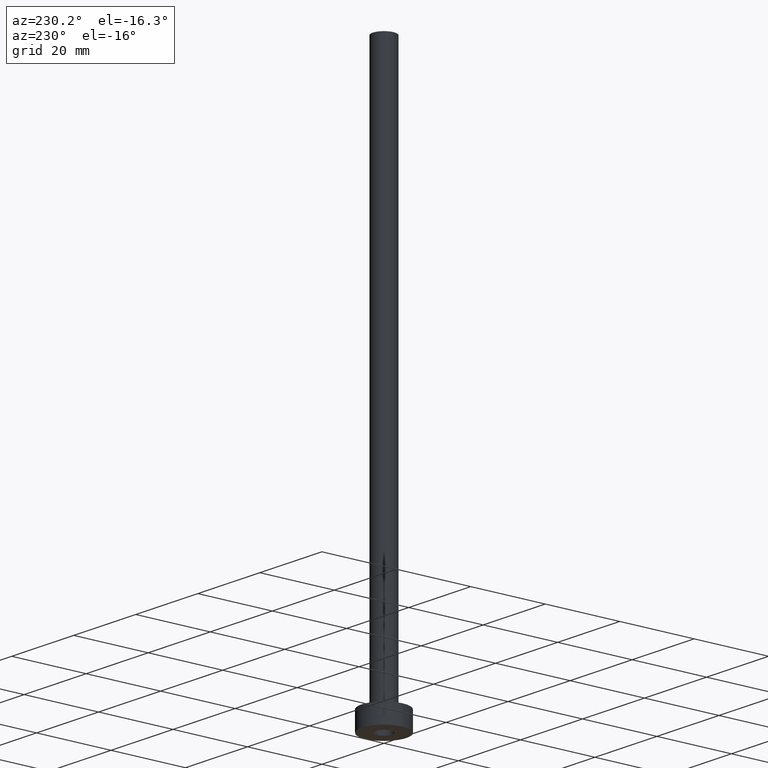
[diagram: clean part render]
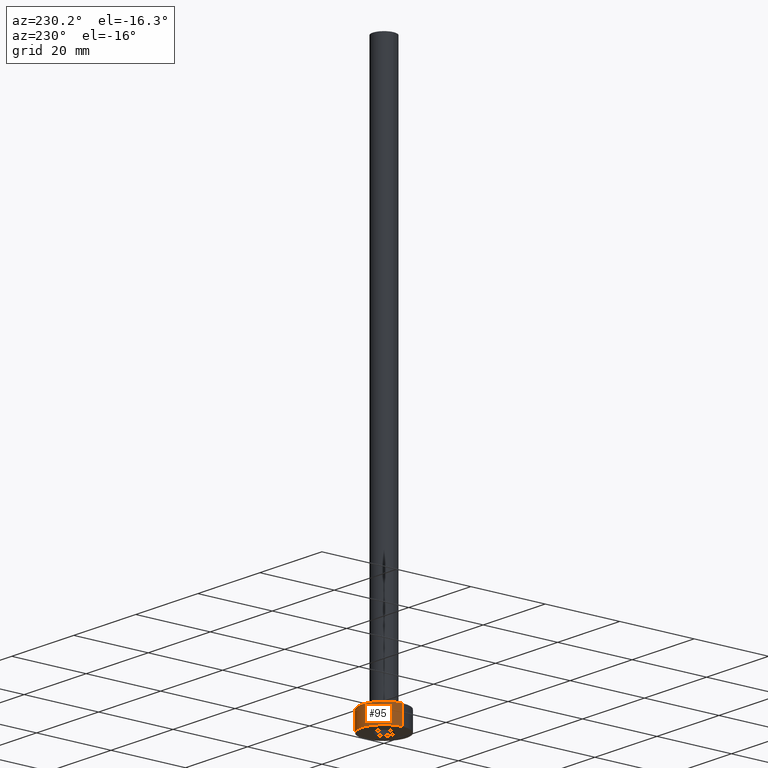
[diagram: same view with one face highlighted and labeled with its STEP entity id]
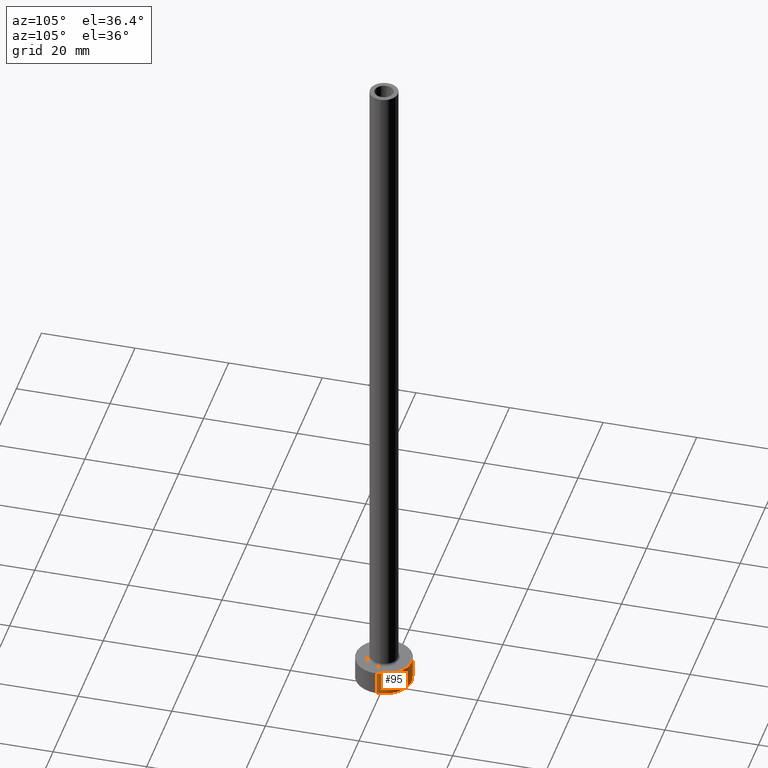
[diagram: same view with one face highlighted and labeled with its STEP entity id]
A machine part, auxiliary view. The second image highlights one B-rep face of the part: STEP entity #95.
A second angle (auxiliary view) of the same face is appended — the face is thin or edge-on in the first view.
In plain terms, the highlighted cylindrical surface (edge-blend (fillet) strip) has radius 6 mm, axis along (-0, -0, -1).
Its self-contained STEP definition (entity closure, byte-faithful):
#13 = DIRECTION ( 'NONE',  ( 1.000000000000000000, 0.000000000000000000, 0.000000000000000000 ) ) ;
#29 = VERTEX_POINT ( 'NONE', #212 ) ;
#34 = AXIS2_PLACEMENT_3D ( 'NONE', #301, #429, #13 ) ;
#44 = VECTOR ( 'NONE', #461, 1000.000000000000000 ) ;
#49 = VERTEX_POINT ( 'NONE', #375 ) ;
#50 = EDGE_CURVE ( 'NONE', #49, #131, #91, .T. ) ;
#90 = VECTOR ( 'NONE', #174, 1000.000000000000000 ) ;
#91 = LINE ( 'NONE', #349, #90 ) ;
#95 = ADVANCED_FACE ( 'NONE', ( #452 ), #288, .T. ) ;
#104 = DIRECTION ( 'NONE',  ( -0.000000000000000000, -0.000000000000000000, -1.000000000000000000 ) ) ;
#113 = EDGE_LOOP ( 'NONE', ( #395, #352, #377, #343 ) ) ;
#124 = CARTESIAN_POINT ( 'NONE',  ( 0.000000000000000000, 0.000000000000000000, 5.000000000000000000 ) ) ;
#131 = VERTEX_POINT ( 'NONE', #384 ) ;
#139 = EDGE_CURVE ( 'NONE', #29, #194, #210, .T. ) ;
#160 = AXIS2_PLACEMENT_3D ( 'NONE', #419, #104, #294 ) ;
#174 = DIRECTION ( 'NONE',  ( -0.000000000000000000, -0.000000000000000000, -1.000000000000000000 ) ) ;
#179 = CIRCLE ( 'NONE', #372, 6.000000000000000888 ) ;
#194 = VERTEX_POINT ( 'NONE', #449 ) ;
#207 = DIRECTION ( 'NONE',  ( 1.000000000000000000, 0.000000000000000000, 0.000000000000000000 ) ) ;
#210 = LINE ( 'NONE', #355, #44 ) ;
#212 = CARTESIAN_POINT ( 'NONE',  ( 6.000000000000000888, 7.347880794884120722E-16, 5.000000000000000000 ) ) ;
#237 = CIRCLE ( 'NONE', #34, 6.000000000000000888 ) ;
#288 = CYLINDRICAL_SURFACE ( 'NONE', #160, 6.000000000000000888 ) ;
#294 = DIRECTION ( 'NONE',  ( -1.000000000000000000, 0.000000000000000000, 0.000000000000000000 ) ) ;
#301 = CARTESIAN_POINT ( 'NONE',  ( 0.000000000000000000, 0.000000000000000000, 0.000000000000000000 ) ) ;
#340 = EDGE_CURVE ( 'NONE', #29, #49, #179, .T. ) ;
#343 = ORIENTED_EDGE ( 'NONE', *, *, #50, .F. ) ;
#349 = CARTESIAN_POINT ( 'NONE',  ( -6.000000000000000888, 0.000000000000000000, 5.000000000000000000 ) ) ;
#352 = ORIENTED_EDGE ( 'NONE', *, *, #139, .T. ) ;
#355 = CARTESIAN_POINT ( 'NONE',  ( 6.000000000000000888, 7.347880794884120722E-16, 5.000000000000000000 ) ) ;
#372 = AXIS2_PLACEMENT_3D ( 'NONE', #124, #382, #207 ) ;
#375 = CARTESIAN_POINT ( 'NONE',  ( -6.000000000000000888, 0.000000000000000000, 5.000000000000000000 ) ) ;
#377 = ORIENTED_EDGE ( 'NONE', *, *, #440, .T. ) ;
#382 = DIRECTION ( 'NONE',  ( 0.000000000000000000, 0.000000000000000000, 1.000000000000000000 ) ) ;
#384 = CARTESIAN_POINT ( 'NONE',  ( -6.000000000000000888, 0.000000000000000000, 0.000000000000000000 ) ) ;
#395 = ORIENTED_EDGE ( 'NONE', *, *, #340, .F. ) ;
#419 = CARTESIAN_POINT ( 'NONE',  ( 0.000000000000000000, 0.000000000000000000, 5.000000000000000000 ) ) ;
#429 = DIRECTION ( 'NONE',  ( 0.000000000000000000, 0.000000000000000000, 1.000000000000000000 ) ) ;
#440 = EDGE_CURVE ( 'NONE', #194, #131, #237, .T. ) ;
#449 = CARTESIAN_POINT ( 'NONE',  ( 6.000000000000000888, 7.347880794884120722E-16, 0.000000000000000000 ) ) ;
#452 = FACE_OUTER_BOUND ( 'NONE', #113, .T. ) ;
#461 = DIRECTION ( 'NONE',  ( -0.000000000000000000, -0.000000000000000000, -1.000000000000000000 ) ) ;